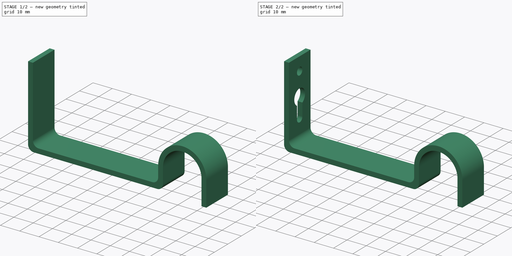
[diagram: build sequence overview — one tinted view per stage of 2, left to right]
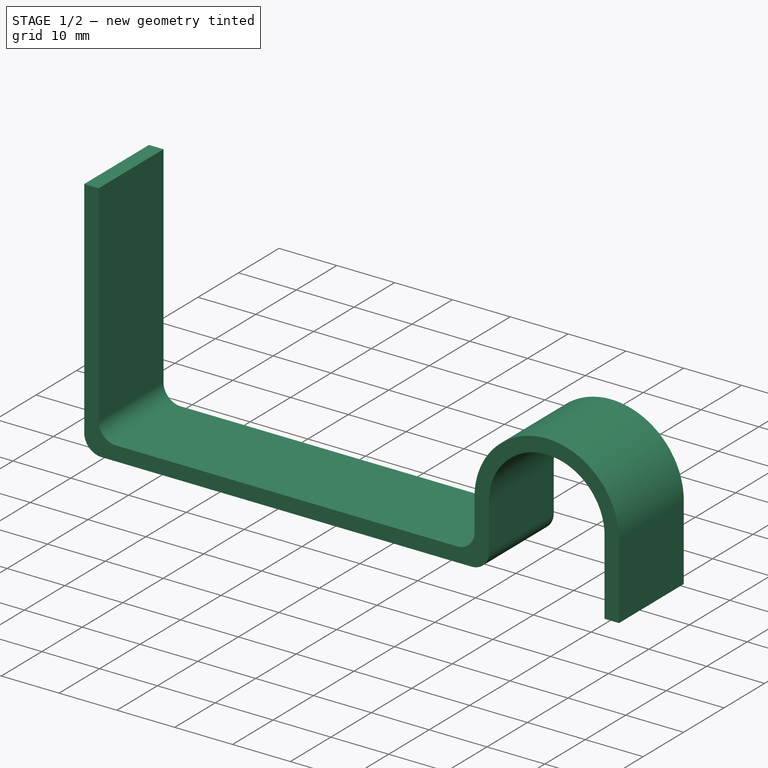
[diagram: stage 1 of 2 — iso view after this stage's code; geometry added in this stage tinted green]
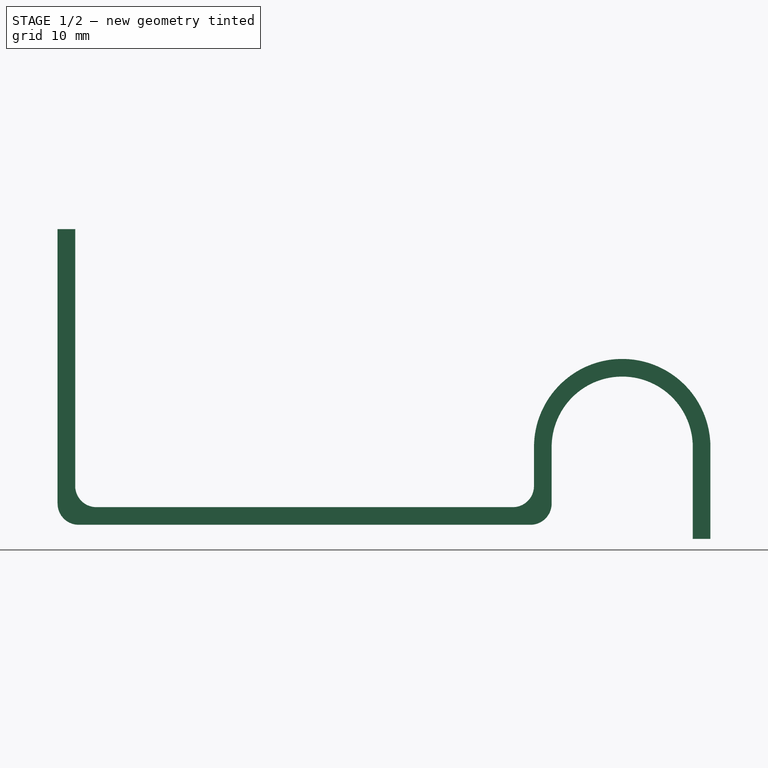
[diagram: stage 1 of 2 — front view after this stage's code; geometry added in this stage tinted green]
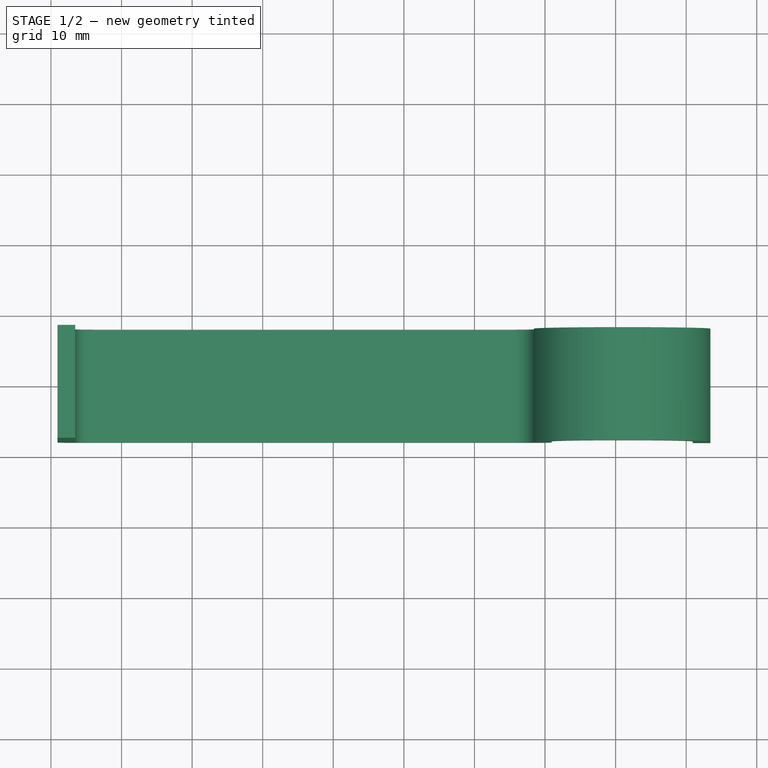
[diagram: stage 1 of 2 — top view after this stage's code; geometry added in this stage tinted green]
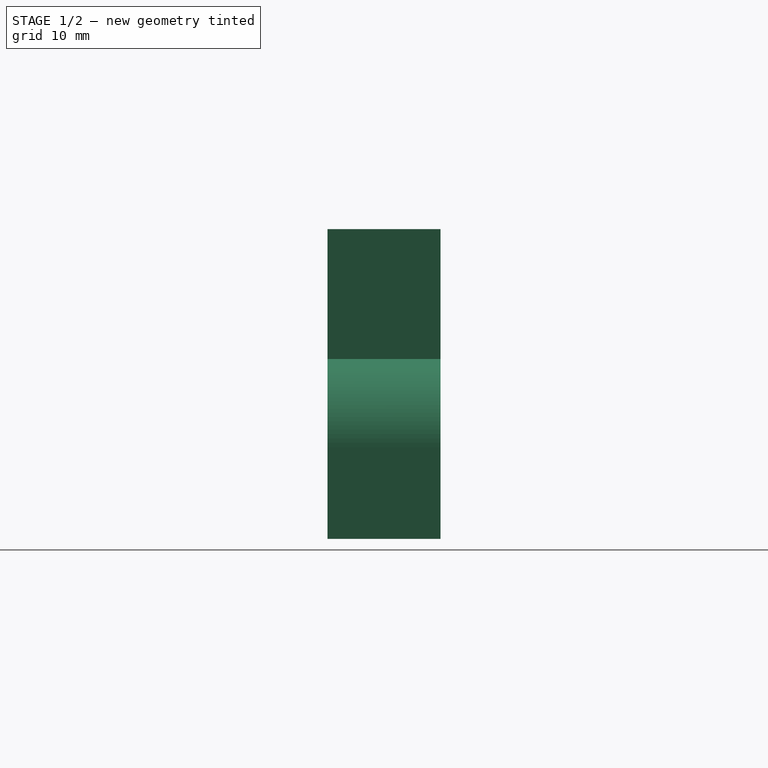
[diagram: stage 1 of 2 — right view after this stage's code; geometry added in this stage tinted green]
FCSTD DOCUMENT  (FreeCAD 0.16R)
Label: soporte cortinas
License: All rights reserved
LicenseURL: http://en.wikipedia.org/wiki/All_rights_reserved
objects: Sketcher::SketchObject×3, PartDesign::Pocket×3, PartDesign::Pad×1
note: 11 computed .brp shape members not serialized (recipe doc carries the construction recipe); baked Part::Feature solids carry a one-line shape summary decoded from their .brp

FEATURE [Sketcher::SketchObject] Sketch
  Placement = pos=(0,0,0) rot=(-1,0,0;4.71239rad)
  sketch-geometry (17):
    g0: LineSegment StartX=-39.065 StartY=41.8951 StartZ=0 EndX=-39.065 EndY=3 EndZ=0
    g1: LineSegment StartX=-36.065 StartY=0 StartZ=0 EndX=27.935 EndY=0 EndZ=0
    g2: LineSegment StartX=30.935 StartY=3 StartZ=0 EndX=30.935 EndY=11 EndZ=0
    g3: LineSegment StartX=50.935 StartY=11 StartZ=0 EndX=50.935 EndY=-2 EndZ=0
    g4: ArcOfCircle CenterX=40.935 CenterY=11 CenterZ=0 NormalX=0 NormalY=0 NormalZ=1 Radius=10 StartAngle=1.01e-10 EndAngle=3.14159
    g5: LineSegment [constr] StartX=6.28667 StartY=21 StartZ=0 EndX=52.5934 EndY=21 EndZ=0
    g6: ArcOfCircle CenterX=-36.065 CenterY=3 CenterZ=0 NormalX=0 NormalY=0 NormalZ=1 Radius=3 StartAngle=3.14159 EndAngle=4.71239
    g7: ArcOfCircle CenterX=27.935 CenterY=3 CenterZ=0 NormalX=0 NormalY=0 NormalZ=1 Radius=3 StartAngle=4.71239 EndAngle=6.28319
    g8: LineSegment StartX=-39.065 StartY=41.8951 StartZ=0 EndX=-36.565 EndY=41.8951 EndZ=0
    g9: LineSegment StartX=-36.565 StartY=41.8951 StartZ=0 EndX=-36.565 EndY=5.5 EndZ=0
    g10: LineSegment StartX=-33.565 StartY=2.5 StartZ=0 EndX=25.435 EndY=2.5 EndZ=0
    g11: LineSegment StartX=28.435 StartY=5.5 StartZ=0 EndX=28.435 EndY=11 EndZ=0
    g12: LineSegment StartX=53.435 StartY=11 StartZ=0 EndX=53.435 EndY=-2 EndZ=0
    g13: LineSegment StartX=50.935 StartY=-2 StartZ=0 EndX=53.435 EndY=-2 EndZ=0
    g14: ArcOfCircle CenterX=25.435 CenterY=5.5 CenterZ=0 NormalX=0 NormalY=0 NormalZ=1 Radius=3 StartAngle=4.71239 EndAngle=6.28319
    g15: ArcOfCircle CenterX=-33.565 CenterY=5.5 CenterZ=0 NormalX=0 NormalY=0 NormalZ=1 Radius=3 StartAngle=3.14159 EndAngle=4.71239
    g16: ArcOfCircle CenterX=40.935 CenterY=11 CenterZ=0 NormalX=0 NormalY=0 NormalZ=1 Radius=12.5 StartAngle=4.96e-10 EndAngle=3.14159
  constraints (45):
    c: Vertical(g0)
    c: Horizontal(g1)
    c: Vertical(g2)
    c: Vertical(g3)
    c: Coincident(g4,g2)
    c: Coincident(g4,g3)
    c: Horizontal(g5)
    c: Tangent(g4,g5)
    c: DistanceY(g3,g5) = 23
    c: Tangent(g2,g4)
    c: Tangent(g4,g3)
    c: Tangent(g0,g6) = -1.5708
    c: Tangent(g1,g6) = -1.5708
    c: Tangent(g1,g7) = -1.5708
    c: Tangent(g2,g7) = -1.5708
    c: PointOnObject(g-1,g1)
    c: DistanceX(g0,g3) = 90
    c: DistanceX(g1,g3) = 23
    c: DistanceX(g2,g3) = 20
    c: Radius(g6) = 3
    c: DistanceY(g1,g5) = 21
    c: Coincident(g8,g0)
    c: Horizontal(g8)
    c: DistanceX(g8,g8) = 2.5
    c: Coincident(g9,g8)
    c: Vertical(g9)
    c: Horizontal(g10)
    c: Vertical(g11)
    c: Vertical(g12)
    c: Coincident(g13,g3)
    c: Coincident(g13,g12)
    c: Horizontal(g13)
    c: Tangent(g11,g14) = -1.5708
    c: Tangent(g10,g14) = -1.5708
    c: Radius(g14) = 3
    c: DistanceX(g13,g13) = 2.5
    c: DistanceX(g11,g2) = 2.5
    c: DistanceY(g-1,g10) = 2.5
    c: Tangent(g9,g15) = -1.5708
    c: Tangent(g10,g15) = -1.5708
    c: Radius(g15) = 3
    c: Coincident(g16,g4)
    c: Coincident(g16,g12)
    c: Coincident(g16,g11)
    c: Tangent(g16,g11)
FEATURE [PartDesign::Pad] Pad
  Length = 16
  Length2 = 100
  Midplane = true
  Placement = pos=(0,0,0) rot=(-1,0,0;4.71239rad)
  Sketch = -> Sketch
  Type = 0
FEATURE [PartDesign::Pocket] Pocket002
  Length = 5
  Placement = pos=(0,0,0) rot=(-1,0,0;4.71239rad)
  Type = 2
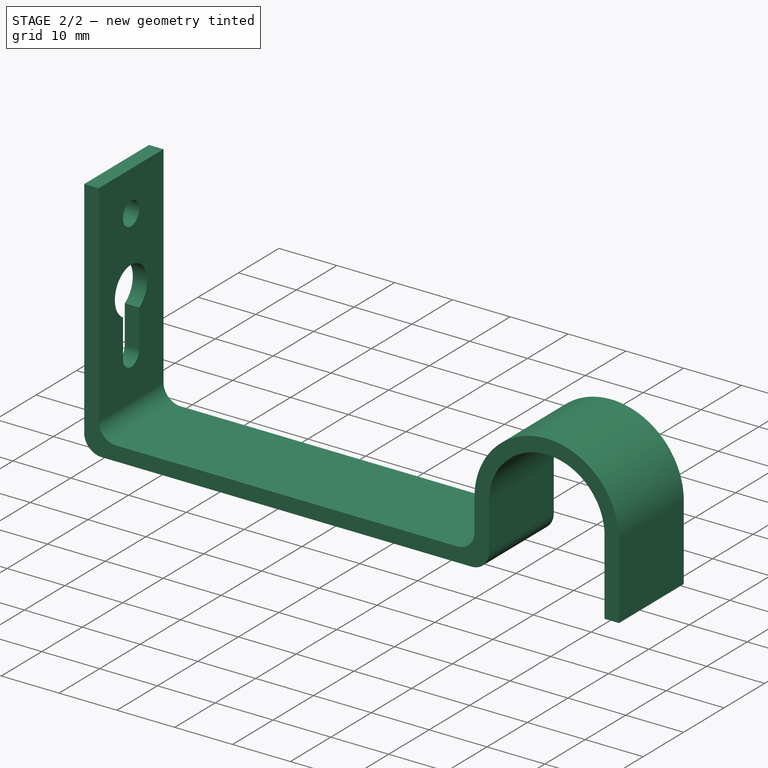
[diagram: stage 2 of 2 — iso view after this stage's code; geometry added in this stage tinted green]
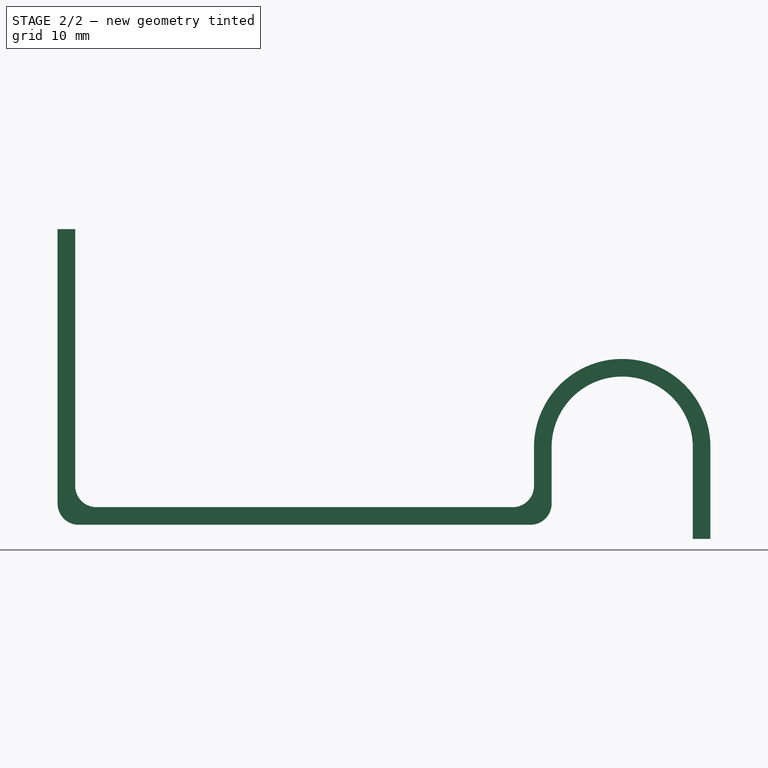
[diagram: stage 2 of 2 — front view after this stage's code; geometry added in this stage tinted green]
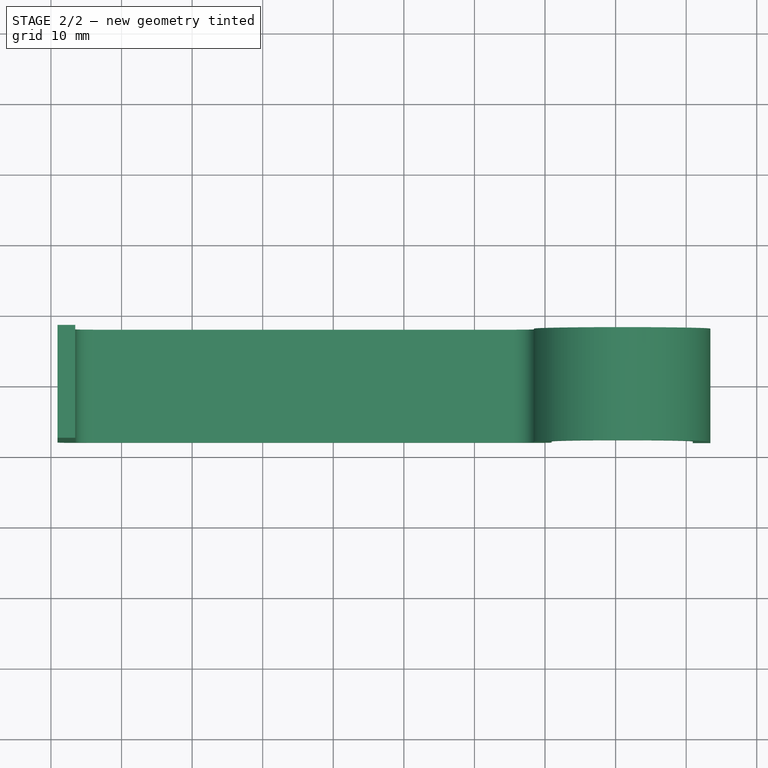
[diagram: stage 2 of 2 — top view after this stage's code; geometry added in this stage tinted green]
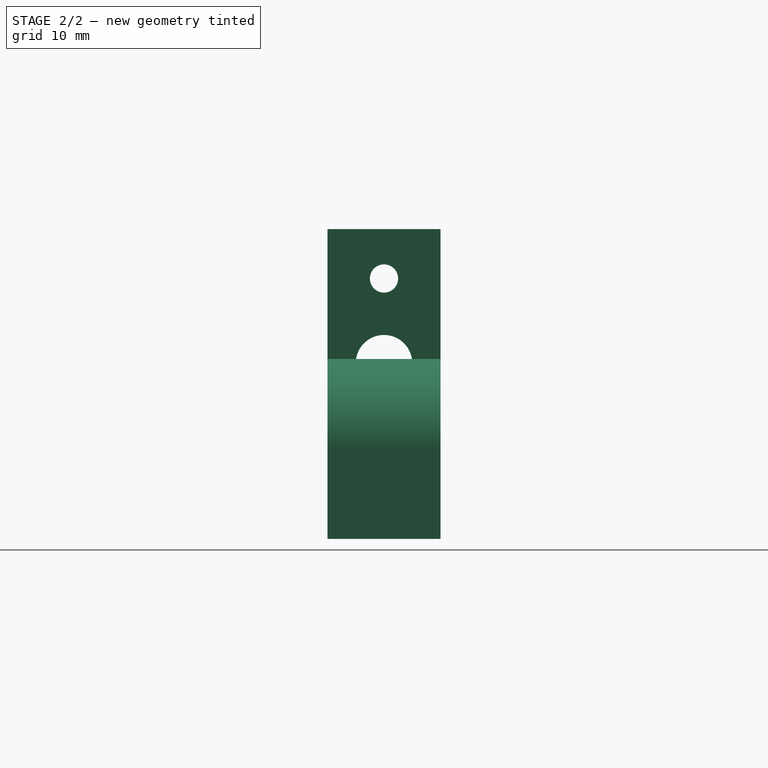
[diagram: stage 2 of 2 — right view after this stage's code; geometry added in this stage tinted green]
FEATURE [Sketcher::SketchObject] Sketch001
  ExternalGeometry = -> [Pad]
  Placement = pos=(-36.565,0,0) rot=(0.707107,0,0.707107;3.14159rad)
  Support = -> Pad [Face15]
  sketch-geometry (1):
    g0: Circle CenterX=34.8951 CenterY=0 CenterZ=0 NormalX=0 NormalY=0 NormalZ=1 Radius=2
  constraints (3):
    c: PointOnObject(g0,g-1)
    c: Radius(g0) = 2
    c: DistanceX(g0,g-3) = 7
FEATURE [PartDesign::Pocket] Pocket
  Length = 5
  Placement = pos=(0,0,0) rot=(-1,0,0;4.71239rad)
  Sketch = -> Sketch001
  Type = 1
FEATURE [Sketcher::SketchObject] Sketch002
  ExternalGeometry = -> [Pocket]
  Placement = pos=(-39.065,0,0) rot=(0.707107,0,-0.707107;3.14159rad)
  Support = -> Pocket [Face1]
  sketch-geometry (4):
    g0: ArcOfCircle CenterX=-22.8951 CenterY=0 CenterZ=0 NormalX=0 NormalY=0 NormalZ=1 Radius=4 StartAngle=0.523599 EndAngle=5.75959
    g1: ArcOfCircle CenterX=-12.8951 CenterY=0 CenterZ=0 NormalX=0 NormalY=0 NormalZ=1 Radius=2 StartAngle=4.71238 EndAngle=7.85398
    g2: LineSegment StartX=-12.8951 StartY=-2 StartZ=0 EndX=-19.431 EndY=-2 EndZ=0
    g3: LineSegment StartX=-12.8951 StartY=2 StartZ=0 EndX=-19.431 EndY=2 EndZ=0
  constraints (14):
    c: PointOnObject(g0,g-1)
    c: PointOnObject(g1,g-1)
    c: Radius(g0) = 4
    c: Radius(g1) = 2
    c: DistanceX(g0,g1) = 10
    c: DistanceX(g-3,g0) = 12
    c: Horizontal(g3)
    c: Horizontal(g2)
    c: Coincident(g1,g2)
    c: Coincident(g1,g3)
    c: Coincident(g0,g3)
    c: Coincident(g0,g2)
    c: Tangent(g3,g1)
    c: Tangent(g1,g2)
FEATURE [PartDesign::Pocket] Pocket001
  Length = 5
  Placement = pos=(0,0,0) rot=(-1,0,0;4.71239rad)
  Sketch = -> Sketch002
  Type = 2
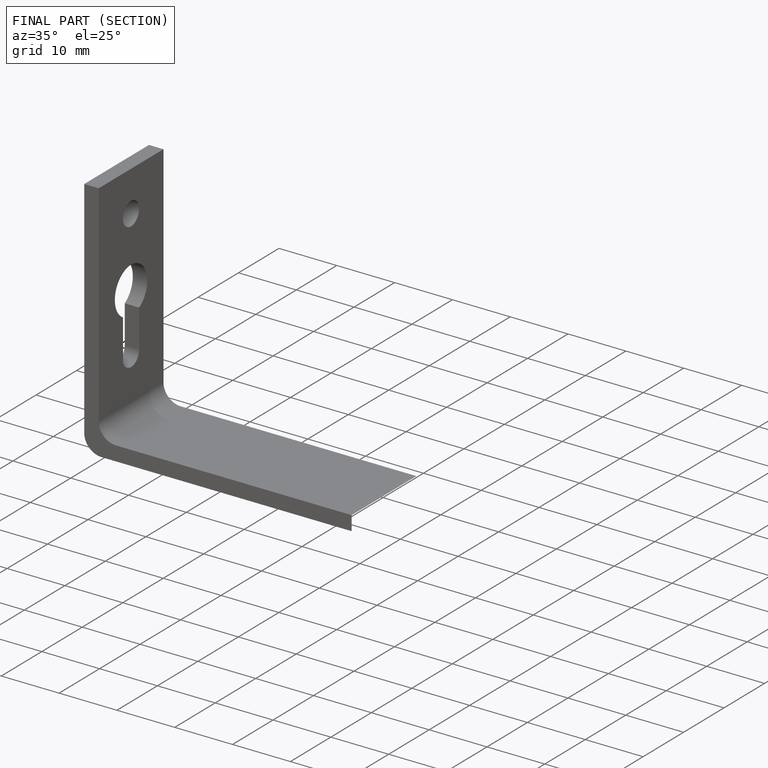
[diagram: finished part — half-section view (interior)]
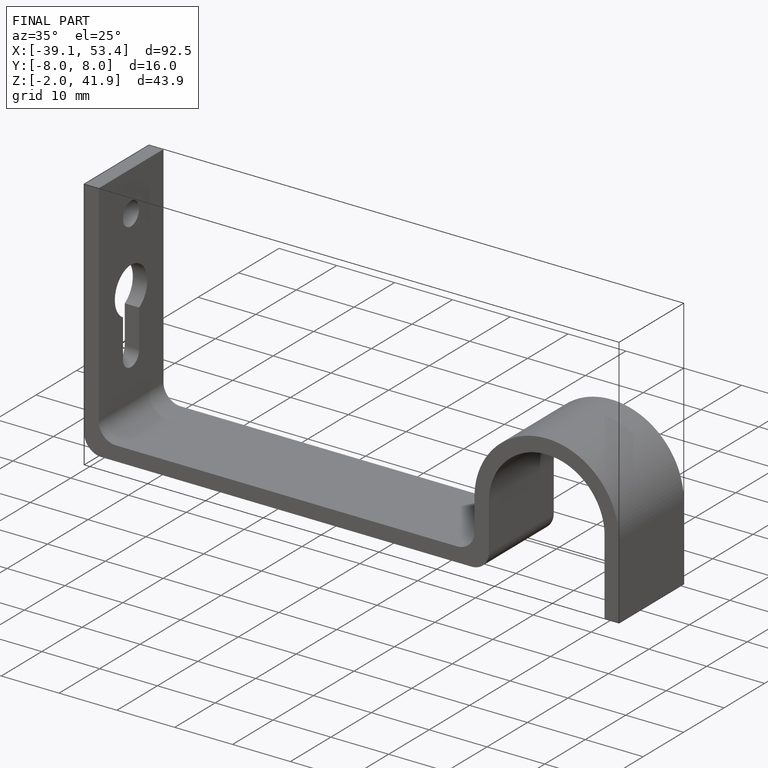
[diagram: finished part — iso view with bounding-box wireframe]
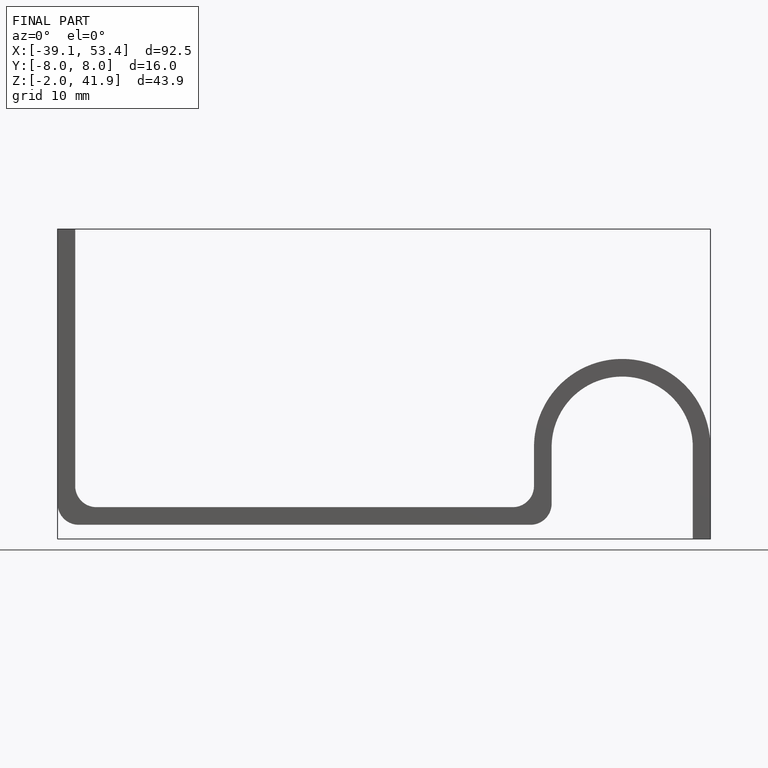
[diagram: finished part — front view with bounding-box wireframe]
